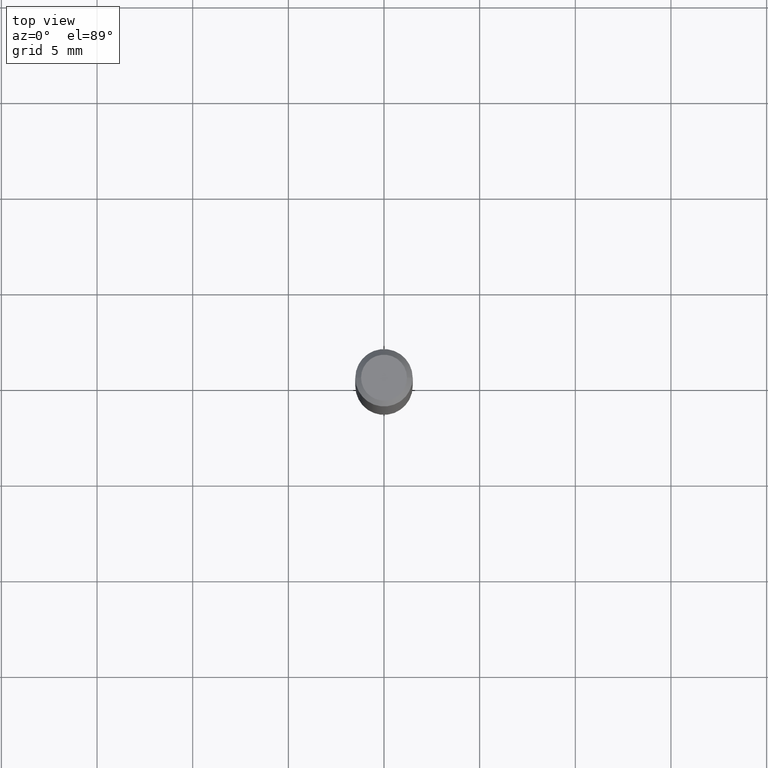
[diagram: clean part render]
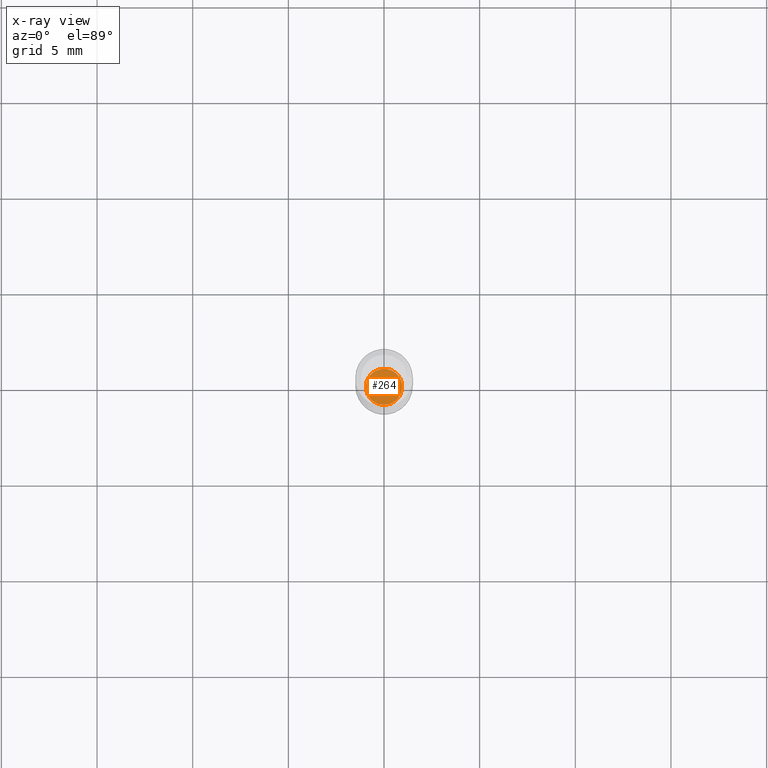
[diagram: x-ray — body ghosted, one internal face saturated and labeled with its STEP entity id]
A machine part, top view, then the same camera in x-ray: the body is ghosted and one INTERNAL B-rep face — a face not visible from any outside direction — is saturated and labeled: STEP entity #264.
In plain terms, the highlighted planar face has unit normal (-0, 0, 1).
Its self-contained STEP definition (entity closure, byte-faithful):
#22 = FACE_OUTER_BOUND ( 'NONE', #271, .T. ) ;
#77 = CIRCLE ( 'NONE', #238, 0.03729999999999999982 ) ;
#93 = CARTESIAN_POINT ( 'NONE',  ( 0.03729999999999999982, -4.081890833241520572E-15, -1.094499999999999806 ) ) ;
#128 = AXIS2_PLACEMENT_3D ( 'NONE', #341, #162, #304 ) ;
#129 = CARTESIAN_POINT ( 'NONE',  ( -0.03729999999999999982, -3.553744657751194204E-15, -1.094499999999999806 ) ) ;
#162 = DIRECTION ( 'NONE',  ( -2.438088387897960049E-29, 3.491481338843145188E-15, 1.000000000000000000 ) ) ;
#190 = DIRECTION ( 'NONE',  ( -2.445468806185136597E-29, 3.491481338843145583E-15, 1.000000000000000000 ) ) ;
#193 = CARTESIAN_POINT ( 'NONE',  ( 2.676565608369631794E-29, -3.821426325363822773E-15, -1.094499999999999806 ) ) ;
#213 = CIRCLE ( 'NONE', #273, 0.03729999999999999982 ) ;
#238 = AXIS2_PLACEMENT_3D ( 'NONE', #453, #190, #416 ) ;
#264 = ADVANCED_FACE ( 'NONE', ( #22 ), #384, .F. ) ;
#271 = EDGE_LOOP ( 'NONE', ( #409, #470 ) ) ;
#273 = AXIS2_PLACEMENT_3D ( 'NONE', #193, #301, #306 ) ;
#301 = DIRECTION ( 'NONE',  ( -2.445468806185136597E-29, 3.491481338843145583E-15, 1.000000000000000000 ) ) ;
#304 = DIRECTION ( 'NONE',  ( 1.000000000000000000, -6.982962677686265922E-15, 4.876176775795935793E-29 ) ) ;
#306 = DIRECTION ( 'NONE',  ( 1.000000000000000000, -6.982962677686270655E-15, 0.000000000000000000 ) ) ;
#341 = CARTESIAN_POINT ( 'NONE',  ( 2.676565608369631794E-29, -3.821426325363822773E-15, -1.094499999999999806 ) ) ;
#349 = VERTEX_POINT ( 'NONE', #129 ) ;
#384 = PLANE ( 'NONE',  #128 ) ;
#393 = EDGE_CURVE ( 'NONE', #433, #349, #77, .T. ) ;
#409 = ORIENTED_EDGE ( 'NONE', *, *, #393, .F. ) ;
#416 = DIRECTION ( 'NONE',  ( 1.000000000000000000, -6.982962677686270655E-15, 0.000000000000000000 ) ) ;
#433 = VERTEX_POINT ( 'NONE', #93 ) ;
#453 = CARTESIAN_POINT ( 'NONE',  ( 2.676565608369631794E-29, -3.821426325363822773E-15, -1.094499999999999806 ) ) ;
#467 = EDGE_CURVE ( 'NONE', #349, #433, #213, .T. ) ;
#470 = ORIENTED_EDGE ( 'NONE', *, *, #467, .F. ) ;